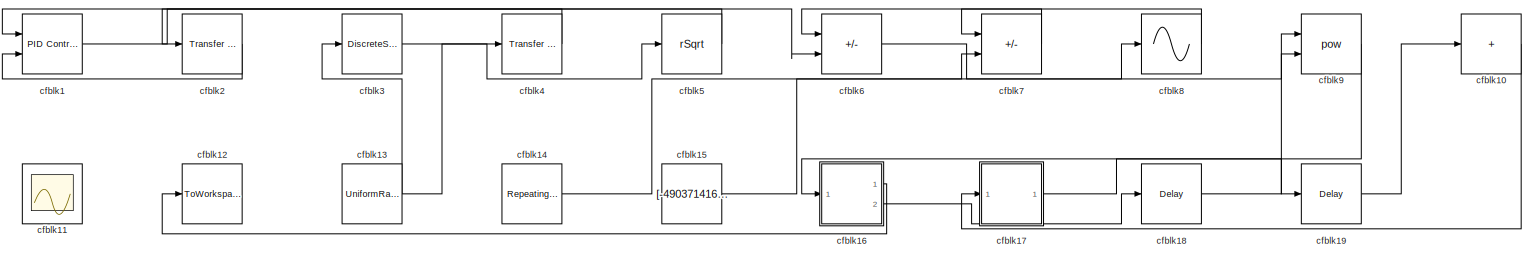
[diagram: root canvas - part 1/1, most of the canvas]
MODEL slx_e0b768c4e5bf
KIND model
CONFIG AbsTol = auto
CONFIG EnableMultiTasking = off
CONFIG FixedStep = auto
CONFIG MaxStep = auto
CONFIG MinStep = auto
CONFIG RelTol = 1e-3
CONFIG SampleTimeConstraint = Unconstrained
CONFIG SolverName = VariableStepAuto
CONFIG StartTime = 0.0
CONFIG StopTime = 10.0
BLOCK [Reference] cfblk1  REF=slpidlib/PID Controller (2DOF)
  Ports = [2, 1]
  SourceBlock = slpidlib/PID Controller (2DOF)
  SourceProductBaseCode = SL
  SourceType = PID 2dof
BLOCK [Sum] cfblk10
  IconShape = rectangular
  Inputs = +
  Ports = [1, 1]
BLOCK [Scope] cfblk11
  Floating = on
  NumInputPorts = 1
  Ports = []
BLOCK [ToWorkspace] cfblk12
  FixptAsFi = on
  MaxDataPoints = inf
  Ports = [1]
  SampleTime = -1
  SaveFormat = Timeseries
  VariableName = ajswweu
BLOCK [UniformRandomNumber] cfblk13
  Maximum = [6640224650.955669]
  Minimum = [-3429401383.992935]
  SampleTime = 0.1
  Seed = [16700104.000000]
BLOCK [Reference] cfblk14  REF=simulink/Sources/Repeating
Sequence
Interpolated
  Ports = [0, 1]
  SourceBlock = simulink/Sources/Repeating\nSequence\nInterpolated
  SourceProductBaseCode = SL
  SourceType = Repeating Sequence Interpolated
BLOCK [Constant] cfblk15
  SampleTime = 1
  Value = [-490371416.788730]
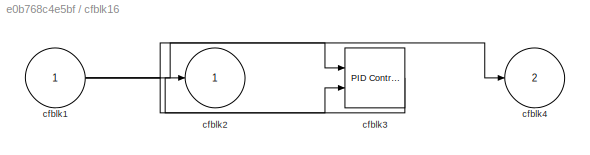
BLOCK [SubSystem] cfblk16
  Ports = [1, 2]
  RequestExecContextInheritance = off
BLOCK [Inport] cfblk16/cfblk1
BLOCK [Outport] cfblk16/cfblk2
BLOCK [Reference] cfblk16/cfblk3  REF=slpidlib/PID Controller (2DOF)
  Ports = [2, 1]
  SourceBlock = slpidlib/PID Controller (2DOF)
  SourceProductBaseCode = SL
  SourceType = PID 2dof
BLOCK [Outport] cfblk16/cfblk4
  Port = 2
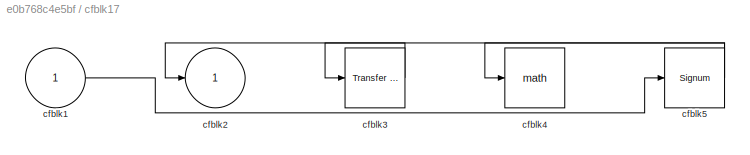
BLOCK [SubSystem] cfblk17
  Ports = [1, 1]
  RequestExecContextInheritance = off
BLOCK [Inport] cfblk17/cfblk1
BLOCK [Outport] cfblk17/cfblk2
BLOCK [Reference] cfblk17/cfblk3  REF=simulink/Discrete/Transfer Fcn
First Order
  Ports = [1, 1]
  SourceBlock = simulink/Discrete/Transfer Fcn\nFirst Order
  SourceProductBaseCode = SL
  SourceType = First Order Transfer Fcn
BLOCK [Math] cfblk17/cfblk4
  Ports = [1, 1]
BLOCK [Signum] cfblk17/cfblk5
BLOCK [Delay] cfblk18
  InputPortMap = u0
  Ports = [1, 1]
  SampleTime = 1
BLOCK [Delay] cfblk19
  InputPortMap = u0
  Ports = [1, 1]
  SampleTime = 1
BLOCK [Reference] cfblk2  REF=simulink/Discrete/Transfer Fcn
Lead or Lag
  Ports = [1, 1]
  SourceBlock = simulink/Discrete/Transfer Fcn\nLead or Lag
  SourceProductBaseCode = SL
  SourceType = Lead or Lag Compensator
BLOCK [DiscreteStateSpace] cfblk3
BLOCK [Reference] cfblk4  REF=simulink/Discrete/Transfer Fcn
First Order
  Ports = [1, 1]
  SourceBlock = simulink/Discrete/Transfer Fcn\nFirst Order
  SourceProductBaseCode = SL
  SourceType = First Order Transfer Fcn
BLOCK [Sqrt] cfblk5
  AlgorithmType = Newton-Raphson
  Operator = rSqrt
BLOCK [Sum] cfblk6
  IconShape = rectangular
  Inputs = +-
  Ports = [2, 1]
BLOCK [Sum] cfblk7
  IconShape = rectangular
  Inputs = +-
  Ports = [2, 1]
BLOCK [Sin] cfblk8
  Ports = [1, 1]
  SampleTime = 0
  TimeSource = Use external signal
BLOCK [Math] cfblk9
  Operator = pow
  Ports = [2, 1]
LINE cfblk10:1 -> cfblk17:1
NET cfblk13:1 -> cfblk3:1, cfblk4:1
LINE cfblk14:1 -> cfblk7:2
LINE cfblk15:1 -> cfblk8:1
NET cfblk16/cfblk1:1 -> cfblk16/cfblk3:1, cfblk16/cfblk3:2, cfblk16/cfblk4:1
LINE cfblk16/cfblk3:1 -> cfblk16/cfblk2:1
LINE cfblk16:1 -> cfblk12:1
LINE cfblk16:2 -> cfblk18:1
LINE cfblk17/cfblk1:1 -> cfblk17/cfblk5:1
LINE cfblk17/cfblk3:1 -> cfblk17/cfblk2:1
NET cfblk17/cfblk5:1 -> cfblk17/cfblk3:1, cfblk17/cfblk4:1
LINE cfblk17:1 -> cfblk19:1
LINE cfblk18:1 -> cfblk9:2
LINE cfblk19:1 -> cfblk10:1
LINE cfblk1:1 -> cfblk6:2
LINE cfblk2:1 -> cfblk1:2
LINE cfblk3:1 -> cfblk5:1
LINE cfblk4:1 -> cfblk1:1
LINE cfblk5:1 -> cfblk2:1
LINE cfblk6:1 -> cfblk9:1
LINE cfblk7:1 -> cfblk6:1
LINE cfblk8:1 -> cfblk7:1
LINE cfblk9:1 -> cfblk16:1
note: NET lines group one-source signal fan-out (src -> all destinations, sorted); 1:1 wires keep LINE
